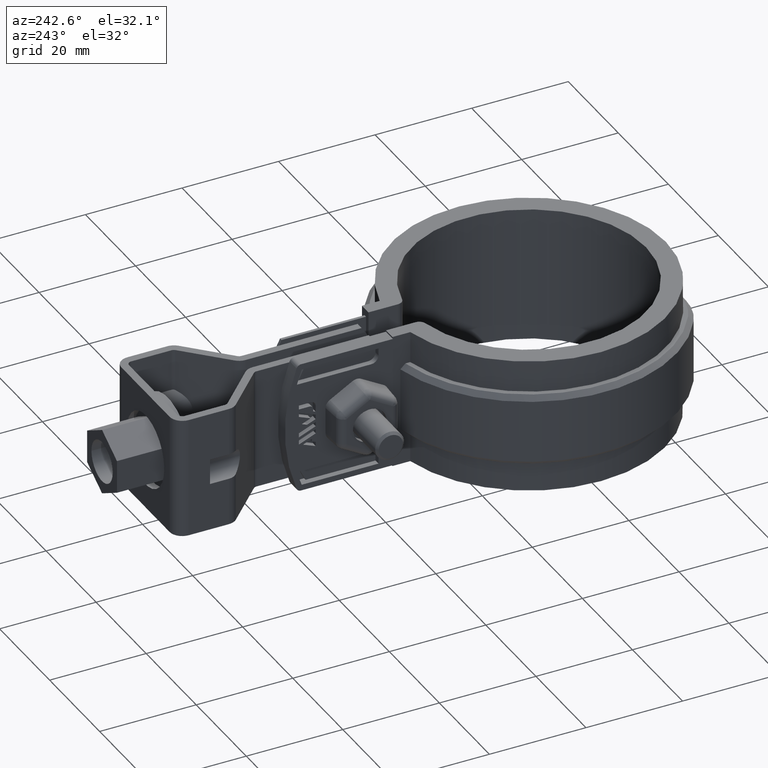
[diagram: clean part render]
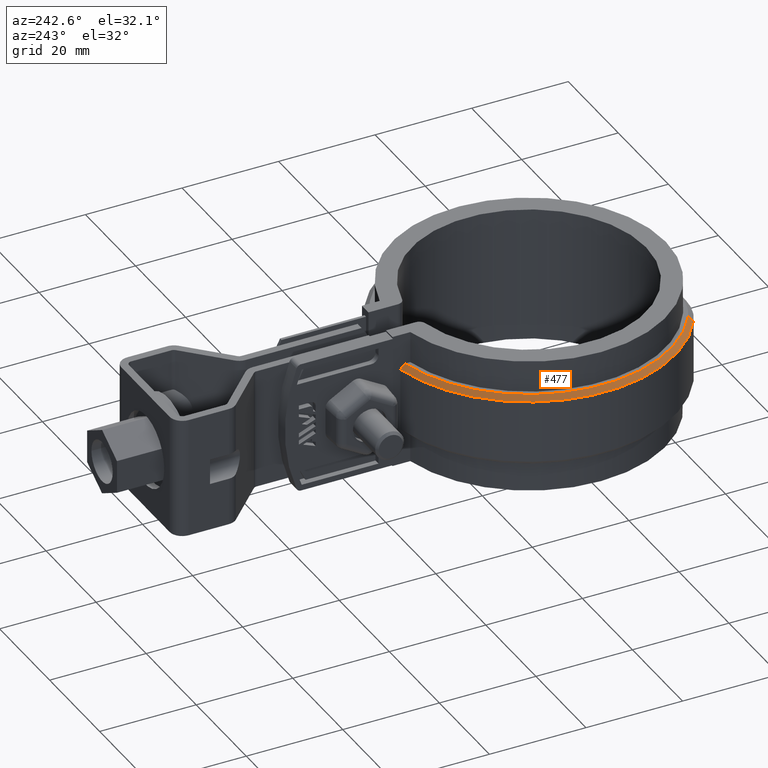
[diagram: same view with one face highlighted and labeled with its STEP entity id]
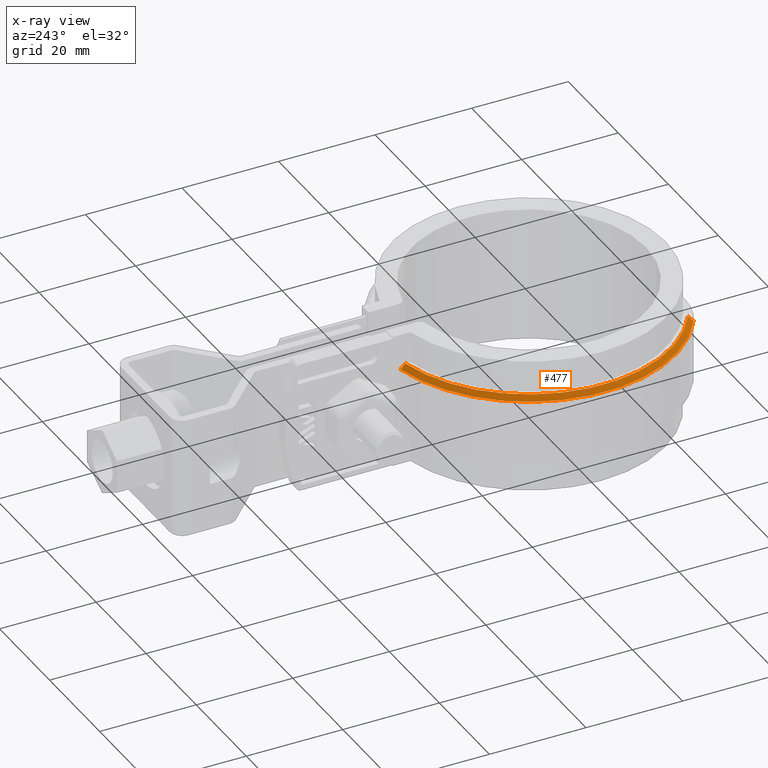
[diagram: x-ray of the same camera — body ghosted, the highlighted face saturated]
A machine part, auxiliary view. The second image highlights one B-rep face of the part: STEP entity #477.
The next image is the same camera in x-ray: the body ghosted, the highlighted face saturated — about 0% of this face is hidden behind the body in this view.
In plain terms, the highlighted conical surface has half-angle 45 deg.
Its self-contained STEP definition (entity closure, byte-faithful):
#477 = ADVANCED_FACE( '', ( #954 ), #955, .T. );
#954 = FACE_OUTER_BOUND( '', #2312, .T. );
#955 = CONICAL_SURFACE( '', #2313, 29.3950000000000, 0.785398163397448 );
#2312 = EDGE_LOOP( '', ( #5198, #5199, #5200, #5201 ) );
#2313 = AXIS2_PLACEMENT_3D( '', #5202, #5203, #5204 );
#5198 = ORIENTED_EDGE( '', *, *, #7685, .F. );
#5199 = ORIENTED_EDGE( '', *, *, #7688, .F. );
#5200 = ORIENTED_EDGE( '', *, *, #7671, .F. );
#5201 = ORIENTED_EDGE( '', *, *, #7689, .F. );
#5202 = CARTESIAN_POINT( '', ( -8.67361737988404E-016, -3.46944695195361E-015, -5.00000000000000 ) );
#5203 = DIRECTION( '', ( 0.000000000000000, 0.000000000000000, -1.00000000000000 ) );
#5204 = DIRECTION( '', ( -1.00000000000000, 0.000000000000000, 0.000000000000000 ) );
#7671 = EDGE_CURVE( '', #8913, #8914, #8915, .T. );
#7685 = EDGE_CURVE( '', #8937, #8939, #8940, .T. );
#7688 = EDGE_CURVE( '', #8914, #8937, #8944, .T. );
#7689 = EDGE_CURVE( '', #8939, #8913, #8945, .F. );
#8913 = VERTEX_POINT( '', #13013 );
#8914 = VERTEX_POINT( '', #13014 );
#8915 = LINE( '', #13015, #13016 );
#8937 = VERTEX_POINT( '', #13051 );
#8939 = VERTEX_POINT( '', #13054 );
#8940 = B_SPLINE_CURVE_WITH_KNOTS( '', 3, ( #13055, #13056, #13057, #13058 ), .UNSPECIFIED., .F., .F., ( 4, 4 ), ( 3.31418454737865E-017, 0.00142949551719674 ), .UNSPECIFIED. );
#8944 = CIRCLE( '', #13064, 30.3950000000000 );
#8945 = CIRCLE( '', #13065, 29.3950000000000 );
#13013 = CARTESIAN_POINT( '', ( -15.5572625747343, -24.9406817505210, -5.00000000000000 ) );
#13014 = CARTESIAN_POINT( '', ( -16.0865111739769, -25.7891485561179, -6.00000000000000 ) );
#13015 = CARTESIAN_POINT( '', ( -15.5572625747343, -24.9406817505210, -5.00000000000000 ) );
#13016 = VECTOR( '', #14992, 1000.00000000000 );
#13051 = CARTESIAN_POINT( '', ( -6.09999999999999, 29.7766019720183, -6.00000000000000 ) );
#13054 = CARTESIAN_POINT( '', ( -6.09999999999999, 28.7551043294925, -5.00000000000000 ) );
#13055 = CARTESIAN_POINT( '', ( -6.09999999999998, 29.7766019720182, -6.00000000000000 ) );
#13056 = CARTESIAN_POINT( '', ( -6.09999999999998, 29.4362218572914, -5.66654505032372 ) );
#13057 = CARTESIAN_POINT( '', ( -6.09999999999999, 29.0957267367249, -5.33320744537946 ) );
#13058 = CARTESIAN_POINT( '', ( -6.09999999999999, 28.7551043294925, -5.00000000000000 ) );
#13064 = AXIS2_PLACEMENT_3D( '', #15012, #15013, #15014 );
#13065 = AXIS2_PLACEMENT_3D( '', #15015, #15016, #15017 );
#14992 = DIRECTION( '', ( -0.374235273457879, -0.599956631849258, -0.707106781186548 ) );
#15012 = CARTESIAN_POINT( '', ( -8.67361737988404E-016, -3.46944695195361E-015, -6.00000000000000 ) );
#15013 = DIRECTION( '', ( 0.000000000000000, 0.000000000000000, -1.00000000000000 ) );
#15014 = DIRECTION( '', ( -1.00000000000000, 0.000000000000000, 0.000000000000000 ) );
#15015 = CARTESIAN_POINT( '', ( -8.67361737988404E-016, -3.46944695195361E-015, -5.00000000000000 ) );
#15016 = DIRECTION( '', ( 0.000000000000000, 0.000000000000000, -1.00000000000000 ) );
#15017 = DIRECTION( '', ( -1.00000000000000, 0.000000000000000, 0.000000000000000 ) );